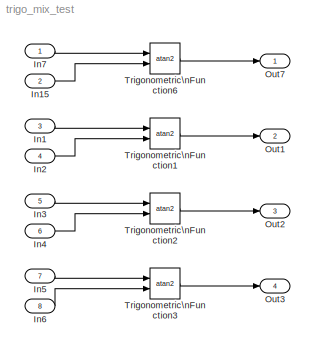
MODEL trigo_mix_test
KIND model
BLOCK [Inport] In1
  IconDisplay = Port number
  Port = 3
  PortDimensions = 2
  SID = 3
BLOCK [Inport] In15
  IconDisplay = Port number
  Port = 2
  PortDimensions = 2
  SID = 2
BLOCK [Inport] In2
  IconDisplay = Port number
  Port = 4
  PortDimensions = 1
  SID = 4
BLOCK [Inport] In3
  IconDisplay = Port number
  Port = 5
  PortDimensions = [2 3]
  SID = 5
BLOCK [Inport] In4
  IconDisplay = Port number
  Port = 6
  PortDimensions = 1
  SID = 6
BLOCK [Inport] In5
  IconDisplay = Port number
  Port = 7
  PortDimensions = 1
  SID = 7
BLOCK [Inport] In6
  IconDisplay = Port number
  Port = 8
  PortDimensions = [2 3]
  SID = 8
BLOCK [Inport] In7
  IconDisplay = Port number
  PortDimensions = 1
  SID = 1
BLOCK [Outport] Out1
  IconDisplay = Port number
  Port = 2
  SID = 14
BLOCK [Outport] Out2
  IconDisplay = Port number
  Port = 3
  SID = 15
BLOCK [Outport] Out3
  IconDisplay = Port number
  Port = 4
  SID = 16
BLOCK [Outport] Out7
  IconDisplay = Port number
  SID = 13
BLOCK [Trigonometry] Trigonometric\nFunction1
  Operator = atan2
  Ports = [2, 1]
  SID = 9
BLOCK [Trigonometry] Trigonometric\nFunction2
  Operator = atan2
  Ports = [2, 1]
  SID = 10
BLOCK [Trigonometry] Trigonometric\nFunction3
  Operator = atan2
  Ports = [2, 1]
  SID = 11
BLOCK [Trigonometry] Trigonometric\nFunction6
  Operator = atan2
  Ports = [2, 1]
  SID = 12
LINE In15:1 -> Trigonometric\nFunction6:2
LINE In1:1 -> Trigonometric\nFunction1:1
LINE In2:1 -> Trigonometric\nFunction1:2
LINE In3:1 -> Trigonometric\nFunction2:1
LINE In4:1 -> Trigonometric\nFunction2:2
LINE In5:1 -> Trigonometric\nFunction3:1
LINE In6:1 -> Trigonometric\nFunction3:2
LINE In7:1 -> Trigonometric\nFunction6:1
LINE Trigonometric\nFunction1:1 -> Out1:1
LINE Trigonometric\nFunction2:1 -> Out2:1
LINE Trigonometric\nFunction3:1 -> Out3:1
LINE Trigonometric\nFunction6:1 -> Out7:1
